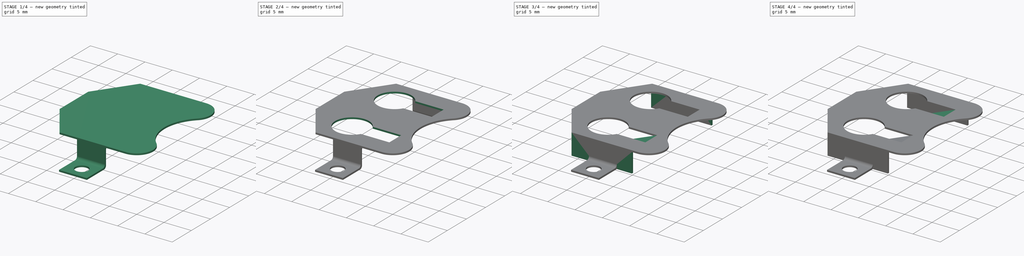
[diagram: build sequence overview — one tinted view per stage of 4, left to right]
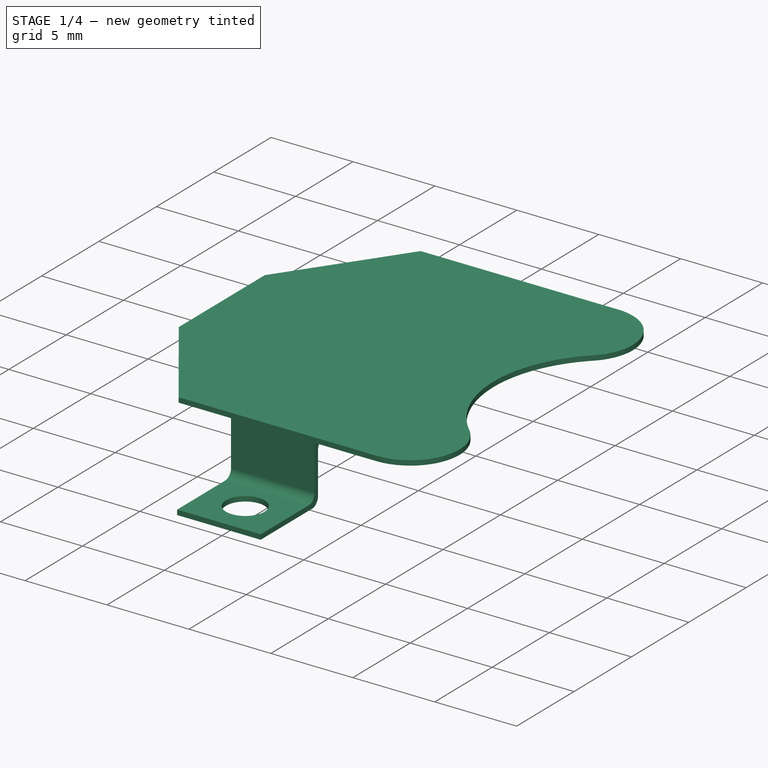
[diagram: stage 1 of 4 — iso view after this stage's code; geometry added in this stage tinted green]
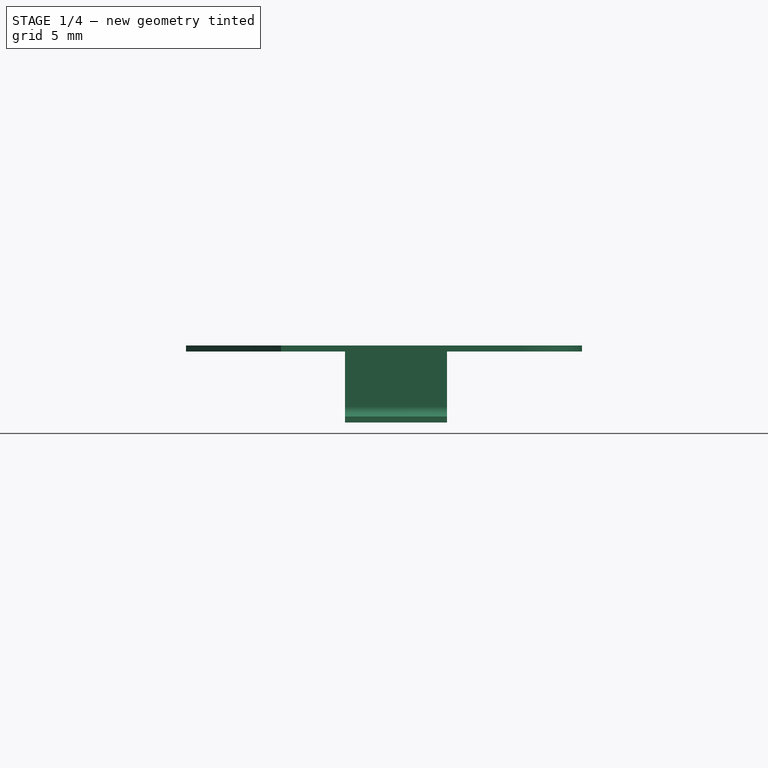
[diagram: stage 1 of 4 — front view after this stage's code; geometry added in this stage tinted green]
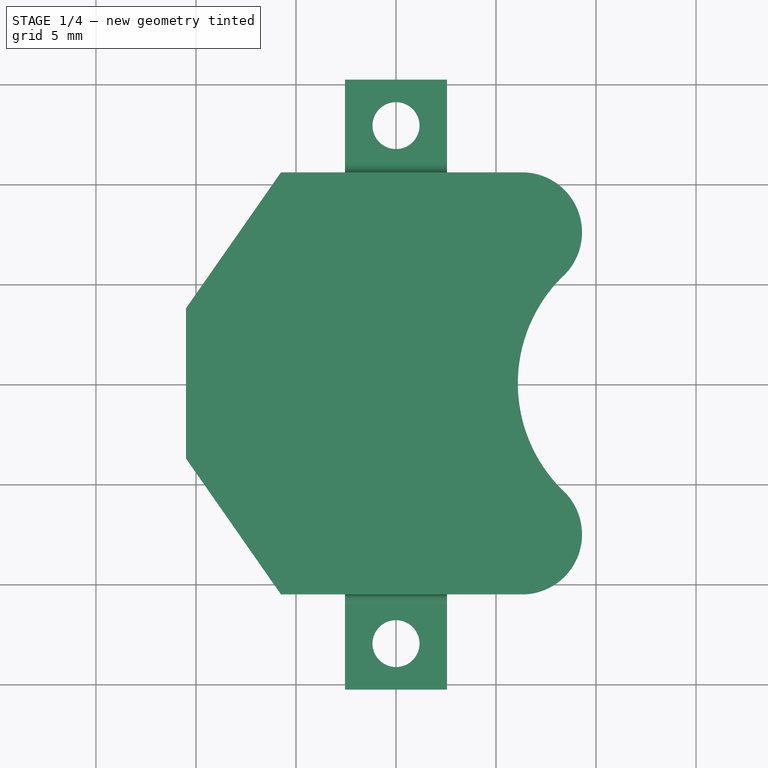
[diagram: stage 1 of 4 — top view after this stage's code; geometry added in this stage tinted green]
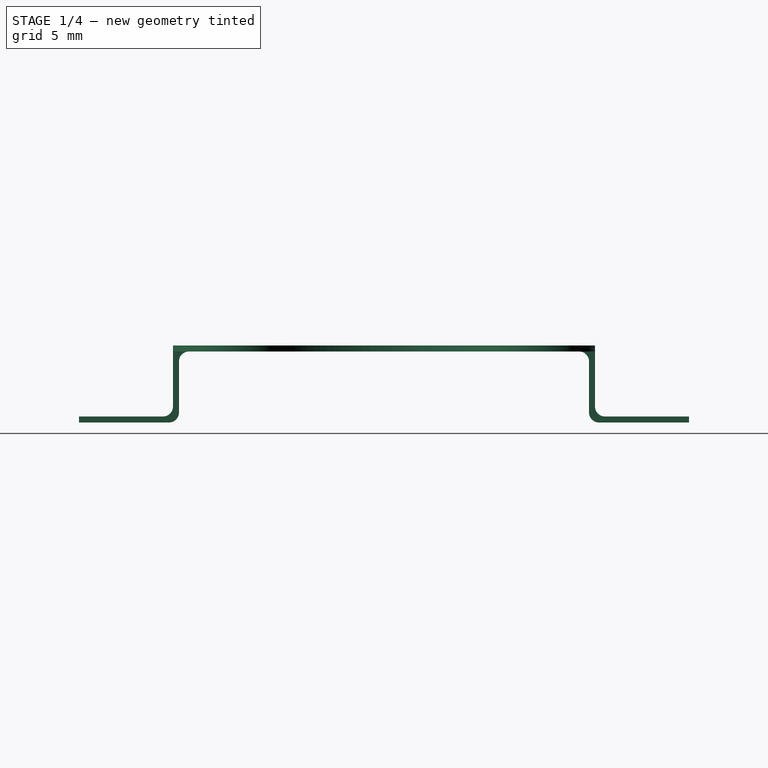
[diagram: stage 1 of 4 — right view after this stage's code; geometry added in this stage tinted green]
FCSTD DOCUMENT  (FreeCAD 1.1R44874 (Git))
Label: BatteryHolder_Eagle_12BH002-GR_1x2032
License: Creative Commons Attribution 4.0
LicenseURL: https://creativecommons.org/licenses/by/4.0/
objects: Sketcher::SketchObject×8, PartDesign::Pad×6, PartDesign::Pocket×2, PartDesign::Mirrored×2, App::Point×1, PartDesign::Fillet×1, PartDesign::Body×1
note: 48 computed .brp shape members not serialized (recipe doc carries the construction recipe); baked Part::Feature solids carry a one-line shape summary decoded from their .brp

FEATURE [App::Point] Origin001
  Role = Origin
FEATURE [Sketcher::SketchObject] Sketch001  label="LegSide"
  ArcFitTolerance = 1e-06
  AttachmentSupport = -> [Origin]
  ExternalTypes = [0]
  FullyConstrained = true
  MakeInternals = false
  MapMode = 5
  Placement = pos=(0,0,0) rot=(0.57735,0.57735,0.57735;2.0944rad)
  _ExternalGeoVersion = 1
  sketch-geometry (24):
    g0: LineSegment StartX=15.25 StartY=0 StartZ=0 EndX=10.75 EndY=0 EndZ=0
    g1: LineSegment StartX=10.25 StartY=0.5 StartZ=0 EndX=10.25 EndY=3.05 EndZ=0
    g2: LineSegment StartX=15.25 StartY=0 StartZ=0 EndX=15.25 EndY=0.3 EndZ=0
    g3: LineSegment StartX=15.25 StartY=0.3 StartZ=0 EndX=11.05 EndY=0.3 EndZ=0
    g4: LineSegment StartX=10.55 StartY=0.8 StartZ=0 EndX=10.55 EndY=3.85 EndZ=0
    g5: LineSegment StartX=10.55 StartY=3.85 StartZ=0 EndX=-10.55 EndY=3.85 EndZ=0
    g6: LineSegment StartX=9.75 StartY=3.55 StartZ=0 EndX=-9.75 EndY=3.55 EndZ=0
    g7: LineSegment StartX=-10.25 StartY=3.05 StartZ=0 EndX=-10.25 EndY=0.5 EndZ=0
    g8: LineSegment StartX=-10.75 StartY=0 StartZ=0 EndX=-15.25 EndY=0 EndZ=0
    g9: LineSegment StartX=-15.25 StartY=0 StartZ=0 EndX=-15.25 EndY=0.3 EndZ=0
    g10: LineSegment StartX=-15.25 StartY=0.3 StartZ=0 EndX=-11.05 EndY=0.3 EndZ=0
    g11: LineSegment StartX=-10.55 StartY=0.8 StartZ=0 EndX=-10.55 EndY=3.85 EndZ=0
    g12: ArcOfCircle CenterX=9.75 CenterY=3.05 CenterZ=0 NormalX=0 NormalY=0 NormalZ=1 AngleXU=0 Radius=0.5 StartAngle=0 EndAngle=1.5708
    g13: ArcOfCircle CenterX=-9.75 CenterY=3.05 CenterZ=0 NormalX=0 NormalY=0 NormalZ=1 AngleXU=0 Radius=0.5 StartAngle=1.5708 EndAngle=3.14159
    g14: ArcOfCircle CenterX=-10.75 CenterY=0.5 CenterZ=0 NormalX=0 NormalY=0 NormalZ=1 AngleXU=0 Radius=0.5 StartAngle=4.71239 EndAngle=6.28319
    g15: GeomPoint [constr] X=-10.25 Y=0 Z=0
    g16: ArcOfCircle CenterX=-11.05 CenterY=0.8 CenterZ=0 NormalX=0 NormalY=0 NormalZ=1 AngleXU=0 Radius=0.5 StartAngle=4.71239 EndAngle=6.28319
    g17: GeomPoint [constr] X=-10.55 Y=0.3 Z=0
    g18: ArcOfCircle CenterX=11.05 CenterY=0.8 CenterZ=0 NormalX=0 NormalY=0 NormalZ=1 AngleXU=0 Radius=0.5 StartAngle=3.14159 EndAngle=4.71239
    g19: GeomPoint [constr] X=10.55 Y=0.3 Z=0
    g20: ArcOfCircle CenterX=10.75 CenterY=0.5 CenterZ=0 NormalX=0 NormalY=0 NormalZ=1 AngleXU=0 Radius=0.5 StartAngle=3.14159 EndAngle=4.71239
    g21: GeomPoint [constr] X=10.25 Y=0 Z=0
    g22: LineSegment [constr] StartX=-9.75 StartY=3.85 StartZ=0 EndX=-9.75 EndY=3.55 EndZ=0
    g23: LineSegment [constr] StartX=-10.55 StartY=0.8 StartZ=0 EndX=-10.25 EndY=0.8 EndZ=0
  constraints (59):
    c: PointOnObject(g0,g-1)
    c: PointOnObject(g21,g-1)
    c: Vertical(g1)
    c: Coincident(g2,g0)
    c: Vertical(g2)
    c: Coincident(g3,g2)
    c: Horizontal(g3)
    c: Vertical(g4)
    c: PointOnObject(g15,g-1)
    c: Vertical(g7)
    c: PointOnObject(g8,g-1)
    c: Coincident(g10,g9)
    c: Horizontal(g10)
    c: Vertical(g11)
    c: Tangent(g6,g12) = -1.5708
    c: Tangent(g1,g12) = -1.5708
    c: Tangent(g6,g13) = -1.5708
    c: Tangent(g7,g13) = -1.5708
    c: PointOnObject(g15,g7)
    c: PointOnObject(g15,g8)
    c: Tangent(g7,g14) = 1.5708
    c: Tangent(g8,g14) = 1.5708
    c: PointOnObject(g17,g11)
    c: PointOnObject(g17,g10)
    c: Tangent(g11,g16) = -1.5708
    c: Tangent(g10,g16) = -1.5708
    c: Vertical(g9)
    c: Coincident(g8,g9)
    c: PointOnObject(g19,g4)
    c: PointOnObject(g19,g3)
    c: Tangent(g4,g18) = 1.5708
    c: Tangent(g3,g18) = 1.5708
    c: PointOnObject(g21,g1)
    c: PointOnObject(g21,g0)
    c: Tangent(g1,g20) = 1.5708
    c: Tangent(g0,g20) = 1.5708
    c: Equal(g12,g20)
    c: Equal(g20,g18)
    c: Equal(g13,g16)
    c: Equal(g16,g14)
    c: DistanceX(g11,g4) = 21.1
    c: DistanceX(g9,g2) = 30.5
    c: Symmetric(g2,g9,g-2)
    c: Distance(g9,g9) = 0.3
    c: Distance(g5,g-1) = 3.85
    c: PointOnObject(g22,g5)
    c: Vertical(g22)
    c: Equal(g22,g9)
    c: PointOnObject(g23,g7)
    c: Horizontal(g23)
    c: Equal(g23,g9)
    c: Radius(g12) = 0.5
    c: Coincident(g5,g4)
    c: Coincident(g11,g5)
    c: Symmetric(g4,g5,g-2)
    c: Equal(g13,g12)
    c: Symmetric(g12,g13,g-2)
    c: Coincident(g23,g11)
    c: Coincident(g22,g6)
FEATURE [PartDesign::Pad] Pad001  label="PadLegSide"
  Direction = (1,0,0)
  Length = 5.1
  Length2 = 10
  Profile = -> Sketch001
  ReferenceAxis = -> Sketch001 [N_Axis]
  Refine = true
  SideType = 2
  Suppressed = false
  Type = 0
  Type2 = 0
FEATURE [Sketcher::SketchObject] Sketch  label="LegHoles"
  ArcFitTolerance = 1e-06
  AttachmentSupport = -> [Pad001]
  ExternalTypes = [0]
  FullyConstrained = true
  MakeInternals = false
  MapMode = 5
  Placement = pos=(0,0,0.3) rot=(0,0,1;0rad)
  _ExternalGeoVersion = 1
  sketch-geometry (2):
    g0: Circle CenterX=0 CenterY=12.95 CenterZ=0 NormalX=0 NormalY=0 NormalZ=1 AngleXU=0 Radius=1.175
    g1: Circle CenterX=0 CenterY=-12.95 CenterZ=0 NormalX=0 NormalY=0 NormalZ=1 AngleXU=0 Radius=1.175
  constraints (5):
    c: PointOnObject(g0,g-2)
    c: Diameter(g0) = 2.35
    c: Equal(g0,g1)
    c: Symmetric(g0,g1,g-1)
    c: DistanceY(g1,g0) = 25.9
FEATURE [PartDesign::Pocket] Pocket  label="PocketLegHoles"
  BaseFeature = -> Pad001
  Direction = (0,0,-1)
  Length = 5
  Length2 = 5
  Profile = -> Sketch
  ReferenceAxis = -> Sketch [N_Axis]
  Refine = true
  SideType = 0
  Suppressed = false
  Type = 1
  Type2 = 0
FEATURE [Sketcher::SketchObject] Sketch002  label="TopShell"
  ArcFitTolerance = 1e-06
  AttachmentOffset = pos=(0,0,3.85) rot=(0,0,1;0rad)
  AttachmentSupport = -> [XY_Plane]
  ExternalTypes = [0]
  FullyConstrained = true
  MakeInternals = false
  MapMode = 5
  Placement = pos=(0,0,3.85) rot=(0,0,1;0rad)
  _ExternalGeoVersion = 1
  sketch-geometry (9):
    g0: LineSegment StartX=-5.75 StartY=10.55 StartZ=0 EndX=-10.5 EndY=3.75 EndZ=0
    g1: LineSegment StartX=-5.75 StartY=-10.55 StartZ=0 EndX=-10.5 EndY=-3.75 EndZ=0
    g2: LineSegment StartX=-10.5 StartY=3.75 StartZ=0 EndX=-10.5 EndY=-3.75 EndZ=0
    g3: ArcOfCircle CenterX=6.3 CenterY=7.55 CenterZ=0 NormalX=0 NormalY=0 NormalZ=1 AngleXU=0 Radius=3 StartAngle=5.43183 EndAngle=7.85398
    g4: ArcOfCircle CenterX=6.3 CenterY=-7.55 CenterZ=0 NormalX=0 NormalY=0 NormalZ=1 AngleXU=0 Radius=3 StartAngle=4.71239 EndAngle=7.13454
    g5: ArcOfCircle CenterX=13.59 CenterY=4e-16 CenterZ=0 NormalX=0 NormalY=0 NormalZ=1 AngleXU=0 Radius=7.5 StartAngle=2.35804 EndAngle=3.92514
    g6: LineSegment [constr] StartX=9.3 StartY=7.55 StartZ=0 EndX=9.3 EndY=-7.55 EndZ=0
    g7: LineSegment StartX=-5.75 StartY=10.55 StartZ=0 EndX=6.3 EndY=10.55 EndZ=0
    g8: LineSegment StartX=-5.75 StartY=-10.55 StartZ=0 EndX=6.3 EndY=-10.55 EndZ=0
  constraints (26):
    c: Distance(g0,g-2) = 10.5
    c: Symmetric(g0,g1,g-1)
    c: Symmetric(g0,g1,g-1)
    c: Coincident(g2,g0)
    c: Coincident(g2,g1)
    c: DistanceY(g1,g0) = 7.5
    c: Equal(g4,g3)
    c: Radius(g3) = 3
    c: Radius(g5) = 7.5
    c: Coincident(g3,g5)
    c: Coincident(g5,g4)
    c: Symmetric(g4,g3,g-1)
    c: Tangent(g6,g3) = 1.5708
    c: PointOnObject(g6,g4)
    c: Vertical(g6)
    c: Distance(g1,g6) = 19.8
    c: Distance(g5,g-2) = 6.09
    c: DistanceY(g1,g0) = 21.1
    c: Distance(g0,g-2) = 5.75
    c: Coincident(g7,g0)
    c: Tangent(g7,g3) = 1.5708
    c: Horizontal(g7)
    c: Coincident(g8,g1)
    c: Coincident(g8,g4)
    c: Horizontal(g8)
    c: Equal(g7,g8)
FEATURE [PartDesign::Pad] Pad  label="PadTopShell"
  BaseFeature = -> Pocket
  Direction = (0,0,1)
  Length = 0.3
  Length2 = 10
  Profile = -> Sketch002
  ReferenceAxis = -> Sketch002 [N_Axis]
  Refine = true
  Reversed = true
  SideType = 0
  Suppressed = false
  Type = 0
  Type2 = 0
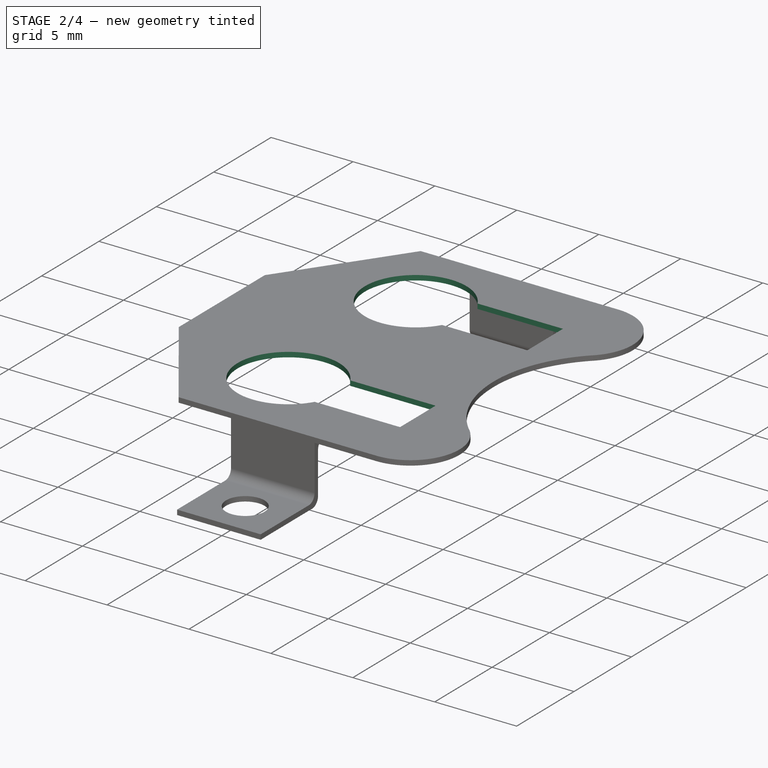
[diagram: stage 2 of 4 — iso view after this stage's code; geometry added in this stage tinted green]
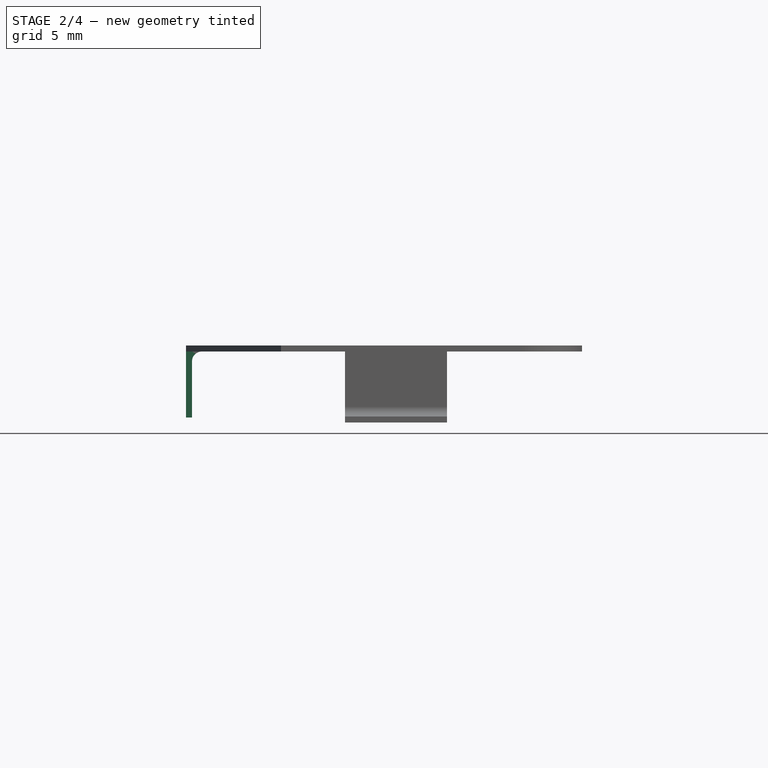
[diagram: stage 2 of 4 — front view after this stage's code; geometry added in this stage tinted green]
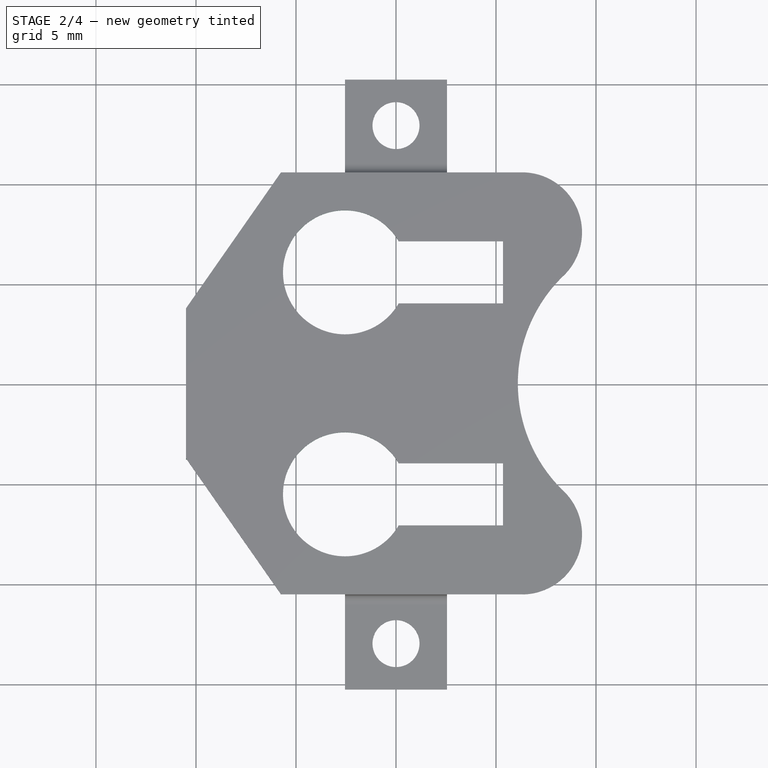
[diagram: stage 2 of 4 — top view after this stage's code; geometry added in this stage tinted green]
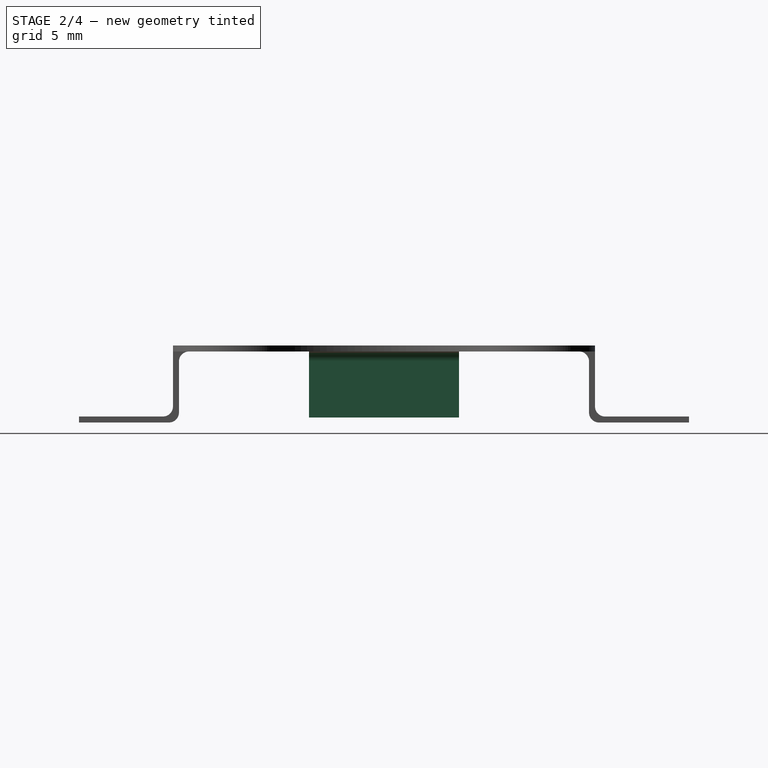
[diagram: stage 2 of 4 — right view after this stage's code; geometry added in this stage tinted green]
FEATURE [Sketcher::SketchObject] Sketch003  label="ShellHoles"
  ArcFitTolerance = 1e-06
  AttachmentSupport = -> [Pad]
  ExternalTypes = [0]
  FullyConstrained = true
  MakeInternals = false
  MapMode = 5
  Placement = pos=(0,0,3.85) rot=(0,0,1;0rad)
  _ExternalGeoVersion = 1
  sketch-geometry (10):
    g0: ArcOfCircle CenterX=-2.55 CenterY=5.55 CenterZ=0 NormalX=0 NormalY=0 NormalZ=1 AngleXU=0 Radius=3.1 StartAngle=0.523599 EndAngle=5.75959
    g1: LineSegment StartX=0.134679 StartY=7.1 StartZ=0 EndX=5.35 EndY=7.1 EndZ=0
    g2: LineSegment StartX=5.35 StartY=7.1 StartZ=0 EndX=5.35 EndY=4 EndZ=0
    g3: LineSegment StartX=5.35 StartY=4 StartZ=0 EndX=0.134679 EndY=4 EndZ=0
    g4: LineSegment [constr] StartX=-2.55 StartY=5.55 StartZ=0 EndX=5.35 EndY=5.55 EndZ=0
    g5: ArcOfCircle CenterX=-2.55 CenterY=-5.55 CenterZ=0 NormalX=0 NormalY=0 NormalZ=1 AngleXU=0 Radius=3.1 StartAngle=0.523599 EndAngle=5.75959
    g6: LineSegment StartX=0.134679 StartY=-7.1 StartZ=0 EndX=5.35 EndY=-7.1 EndZ=0
    g7: LineSegment StartX=5.35 StartY=-7.1 StartZ=0 EndX=5.35 EndY=-4 EndZ=0
    g8: LineSegment StartX=5.35 StartY=-4 StartZ=0 EndX=0.134679 EndY=-4 EndZ=0
    g9: LineSegment [constr] StartX=-2.55 StartY=-5.55 StartZ=0 EndX=5.35 EndY=-5.55 EndZ=0
  constraints (27):
    c: Distance(g0,g-2) = 2.55
    c: Horizontal(g1)
    c: Coincident(g2,g1)
    c: Vertical(g2)
    c: Coincident(g3,g2)
    c: Horizontal(g3)
    c: Radius(g0) = 3.1
    c: Coincident(g1,g0)
    c: Coincident(g3,g0)
    c: Coincident(g4,g0)
    c: PointOnObject(g4,g2)
    c: Horizontal(g4)
    c: Symmetric(g0,g0,g4)
    c: Equal(g0,g5)
    c: Symmetric(g0,g5,g-1)
    c: Symmetric(g0,g5,g-1)
    c: Symmetric(g1,g6,g-1)
    c: Symmetric(g1,g6,g-1)
    c: Symmetric(g2,g7,g-1)
    c: Symmetric(g2,g7,g-1)
    c: Symmetric(g3,g8,g-1)
    c: Symmetric(g3,g8,g-1)
    c: Symmetric(g4,g9,g-1)
    c: Symmetric(g4,g9,g-1)
    c: DistanceY(g5,g0) = 11.1
    c: DistanceY(g7,g2) = 8
    c: DistanceX(g0,g1) = 7.9
FEATURE [PartDesign::Pocket] Pocket001  label="PocketShellHoles"
  BaseFeature = -> Pad
  Direction = (0,0,-1)
  Length = 5
  Length2 = 5
  Profile = -> Sketch003
  ReferenceAxis = -> Sketch003 [N_Axis]
  Refine = true
  SideType = 0
  Suppressed = false
  Type = 1
  Type2 = 0
FEATURE [Sketcher::SketchObject] Sketch004  label="FrontWall"
  ArcFitTolerance = 1e-06
  AttachmentSupport = -> [Pocket001]
  ExternalGeometry = -> [Sketch002]
  ExternalTypes = [0,0]
  FullyConstrained = true
  MakeInternals = false
  MapMode = 5
  Placement = pos=(0,0,3.55) rot=(1,0,0;3.14159rad)
  _ExternalGeoVersion = 1
  sketch-geometry (3):
    g0: LineSegment StartX=-10.5 StartY=3.75 StartZ=0 EndX=-10.2 EndY=3.75 EndZ=0
    g1: LineSegment StartX=-10.2 StartY=3.75 StartZ=0 EndX=-10.2 EndY=-3.75 EndZ=0
    g2: LineSegment StartX=-10.2 StartY=-3.75 StartZ=0 EndX=-10.5 EndY=-3.75 EndZ=0
  constraints (8):
    c: Horizontal(g0)
    c: Coincident(g1,g0)
    c: Vertical(g1)
    c: Coincident(g2,g1)
    c: Horizontal(g2)
    c: DistanceX(g0,g0) = 0.3
    c: Coincident(g0,g-3)
    c: Coincident(g2,g-3)
FEATURE [PartDesign::Pad] Pad002  label="PadFrontWall"
  BaseFeature = -> Pocket001
  Direction = (0,0,-1)
  Length = 3.3
  Length2 = 10
  Profile = -> Sketch004
  ReferenceAxis = -> Sketch004 [N_Axis]
  Refine = true
  SideType = 0
  Suppressed = false
  Type = 0
  Type2 = 0
FEATURE [PartDesign::Fillet] Fillet  label="FilletStopperInner"
  Base = -> Pad002 [Edge32]
  BaseFeature = -> Pad002
  Radius = 0.5
  Refine = true
  SupportTransform = false
  Suppressed = false
  UseAllEdges = false
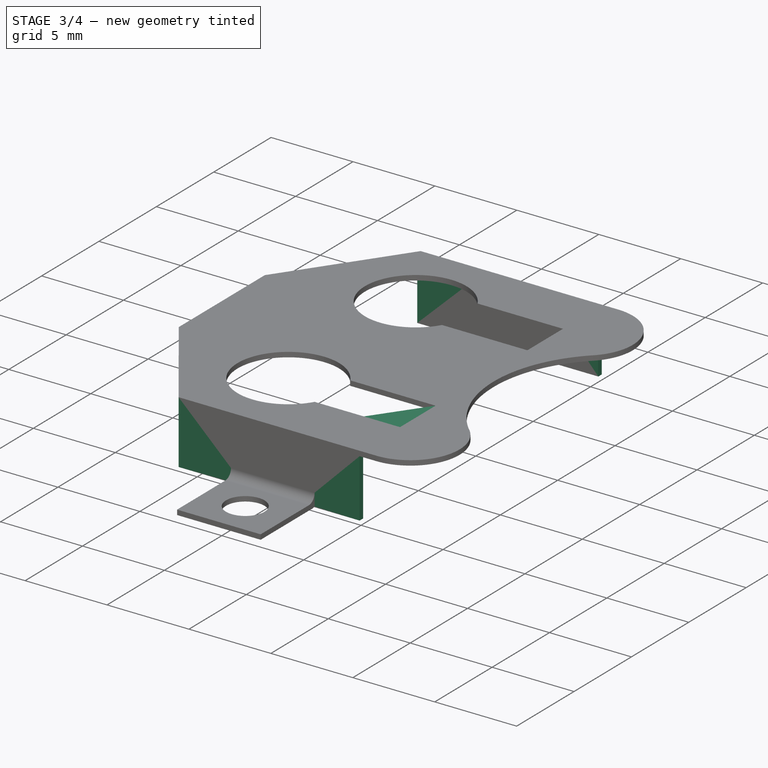
[diagram: stage 3 of 4 — iso view after this stage's code; geometry added in this stage tinted green]
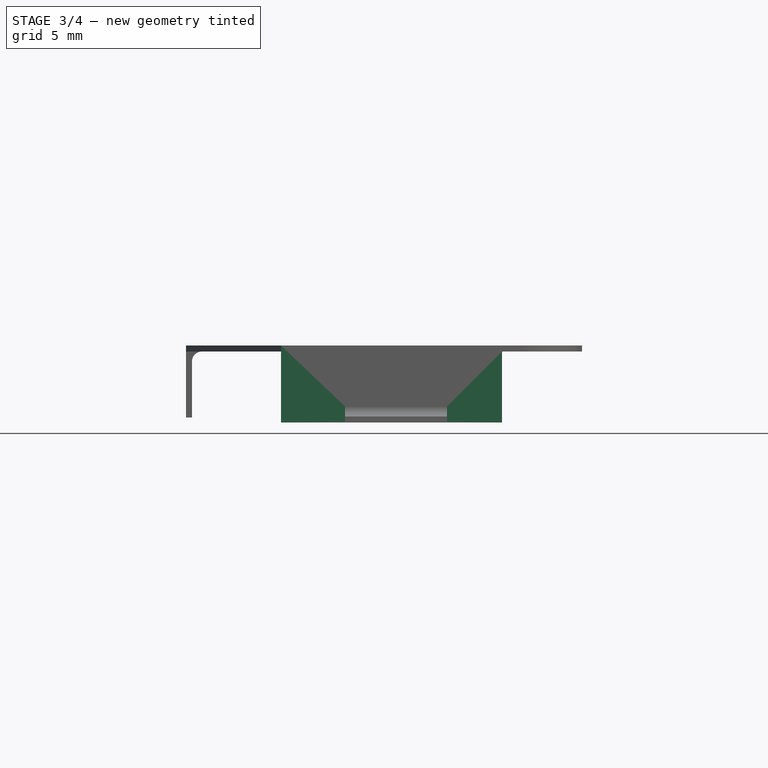
[diagram: stage 3 of 4 — front view after this stage's code; geometry added in this stage tinted green]
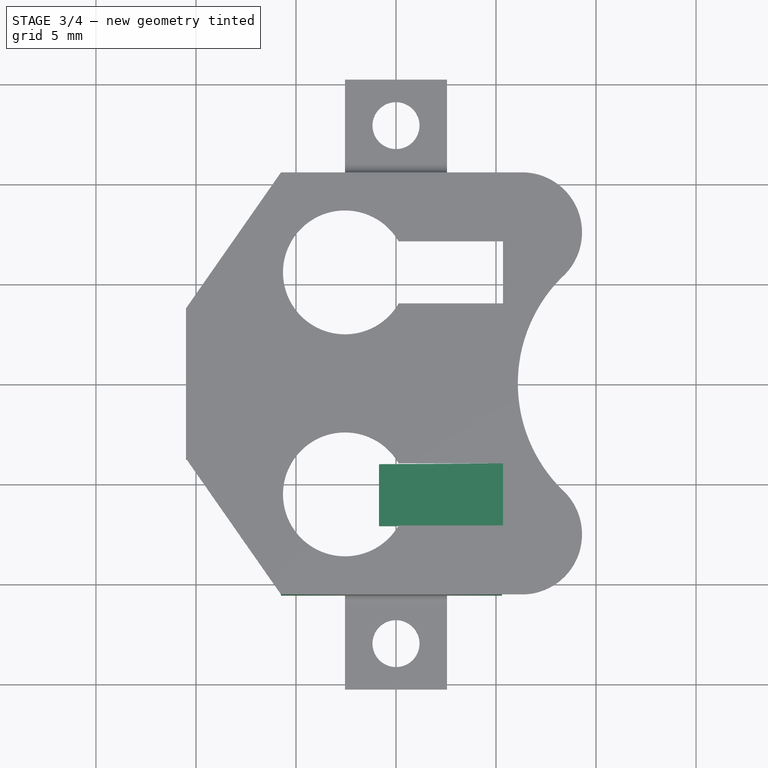
[diagram: stage 3 of 4 — top view after this stage's code; geometry added in this stage tinted green]
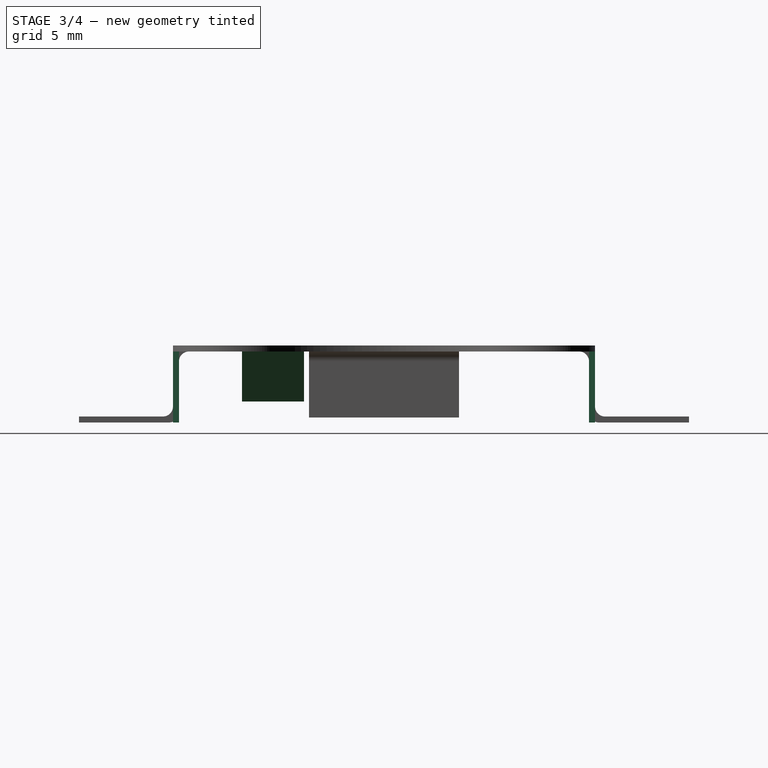
[diagram: stage 3 of 4 — right view after this stage's code; geometry added in this stage tinted green]
FEATURE [Sketcher::SketchObject] Sketch005  label="SideWalls"
  ArcFitTolerance = 1e-06
  AttachmentSupport = -> [Pocket001]
  ExternalGeometry = -> [Pocket001]
  ExternalTypes = [0,0]
  FullyConstrained = true
  MakeInternals = false
  MapMode = 5
  Placement = pos=(0,0,3.55) rot=(1,0,0;3.14159rad)
  _ExternalGeoVersion = 1
  sketch-geometry (8):
    g0: LineSegment StartX=-5.75 StartY=10.55 StartZ=0 EndX=5.3 EndY=10.55 EndZ=0
    g1: LineSegment StartX=5.3 StartY=10.55 StartZ=0 EndX=5.3 EndY=10.25 EndZ=0
    g2: LineSegment StartX=5.3 StartY=10.25 StartZ=0 EndX=-5.75 EndY=10.25 EndZ=0
    g3: LineSegment StartX=-5.75 StartY=10.55 StartZ=0 EndX=-5.75 EndY=10.25 EndZ=0
    g4: LineSegment StartX=-5.75 StartY=-10.55 StartZ=0 EndX=5.3 EndY=-10.55 EndZ=0
    g5: LineSegment StartX=5.3 StartY=-10.55 StartZ=0 EndX=5.3 EndY=-10.25 EndZ=0
    g6: LineSegment StartX=5.3 StartY=-10.25 StartZ=0 EndX=-5.75 EndY=-10.25 EndZ=0
    g7: LineSegment StartX=-5.75 StartY=-10.55 StartZ=0 EndX=-5.75 EndY=-10.25 EndZ=0
  constraints (19):
    c: Coincident(g0,g-3)
    c: Horizontal(g0)
    c: Coincident(g1,g0)
    c: Vertical(g1)
    c: Horizontal(g2)
    c: Coincident(g3,g0)
    c: Coincident(g3,g2)
    c: Vertical(g3)
    c: DistanceY(g1,g1) = 0.3
    c: Coincident(g1,g2)
    c: DistanceX(g-4,g0) = 15.8
    c: Symmetric(g0,g4,g-1)
    c: Symmetric(g0,g4,g-1)
    c: Symmetric(g1,g5,g-1)
    c: Symmetric(g1,g5,g-1)
    c: Symmetric(g2,g6,g-1)
    c: Symmetric(g2,g6,g-1)
    c: Symmetric(g3,g7,g-1)
    c: Symmetric(g3,g7,g-1)
FEATURE [PartDesign::Pad] Pad003  label="PadSideWalls"
  BaseFeature = -> Fillet
  Direction = (0,0,-1)
  Length = 3.55
  Length2 = 10
  Profile = -> Sketch005
  ReferenceAxis = -> Sketch005 [N_Axis]
  Refine = true
  SideType = 0
  Suppressed = false
  Type = 0
  Type2 = 0
FEATURE [Sketcher::SketchObject] Sketch006  label="SpringStem"
  ArcFitTolerance = 1e-06
  AttachmentOffset = pos=(0,0,4) rot=(0,0,1;0rad)
  AttachmentSupport = -> [Origin]
  ExternalGeometry = -> [Sketch003]
  ExternalTypes = [0]
  FullyConstrained = true
  MakeInternals = false
  MapMode = 5
  Placement = pos=(0,-4,9e-16) rot=(1,0,0;1.5708rad)
  _ExternalGeoVersion = 1
  sketch-geometry (4):
    g0: LineSegment StartX=-0.85 StartY=1.35 StartZ=0 EndX=5.35 EndY=3.85 EndZ=0
    g1: LineSegment StartX=-0.85 StartY=1.35 StartZ=0 EndX=-0.85 EndY=1.05 EndZ=0
    g2: LineSegment StartX=-0.85 StartY=1.05 StartZ=0 EndX=5.35 EndY=3.55 EndZ=0
    g3: LineSegment StartX=5.35 StartY=3.85 StartZ=0 EndX=5.35 EndY=3.55 EndZ=0
  constraints (11):
    c: Coincident(g0,g-3)
    c: DistanceX(g0,g0) = 6.2
    c: Coincident(g1,g0)
    c: Vertical(g1)
    c: Coincident(g2,g1)
    c: Coincident(g3,g0)
    c: Coincident(g3,g2)
    c: Vertical(g3)
    c: DistanceY(g2,g0) = 0.3
    c: Equal(g0,g2)
    c: DistanceY(g1,g0) = 2.8
FEATURE [PartDesign::Pad] Pad004  label="PadSpringStem"
  BaseFeature = -> Pad003
  Direction = (0,-1,2e-16)
  Length = 3.1
  Length2 = 10
  Profile = -> Sketch006
  ReferenceAxis = -> Sketch006 [N_Axis]
  Refine = true
  SideType = 0
  Suppressed = false
  Type = 0
  Type2 = 0
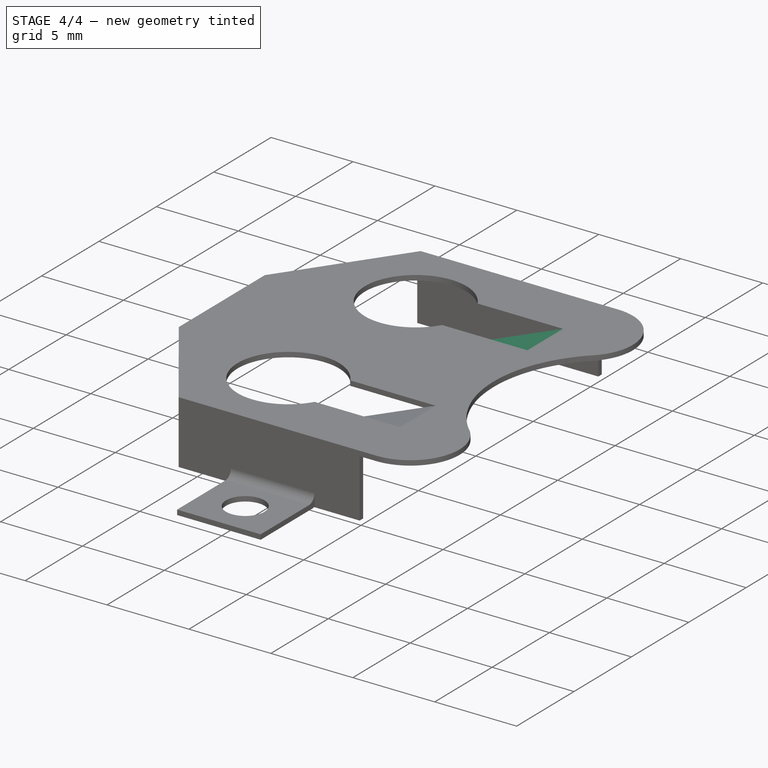
[diagram: stage 4 of 4 — iso view after this stage's code; geometry added in this stage tinted green]
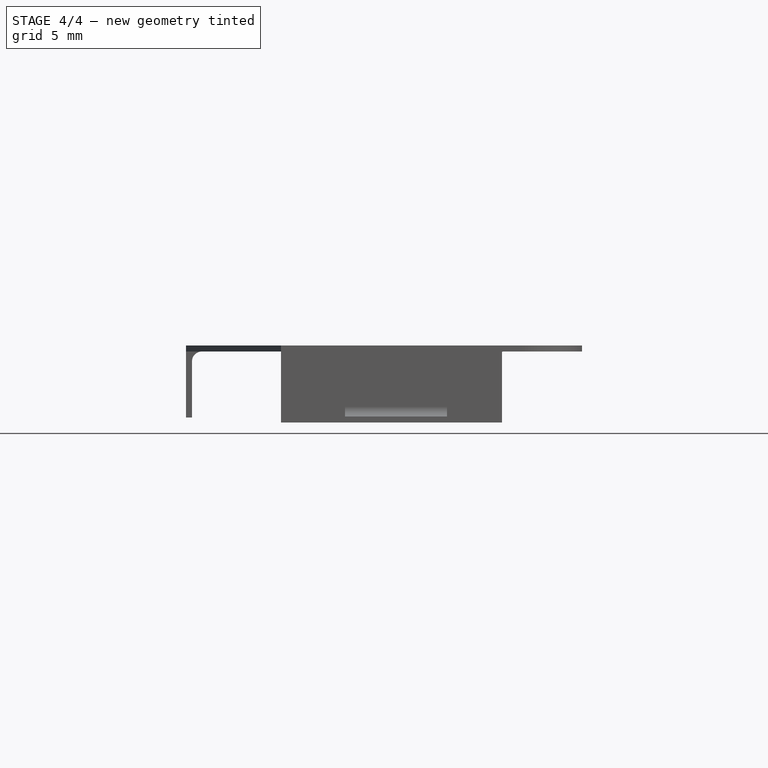
[diagram: stage 4 of 4 — front view after this stage's code; geometry added in this stage tinted green]
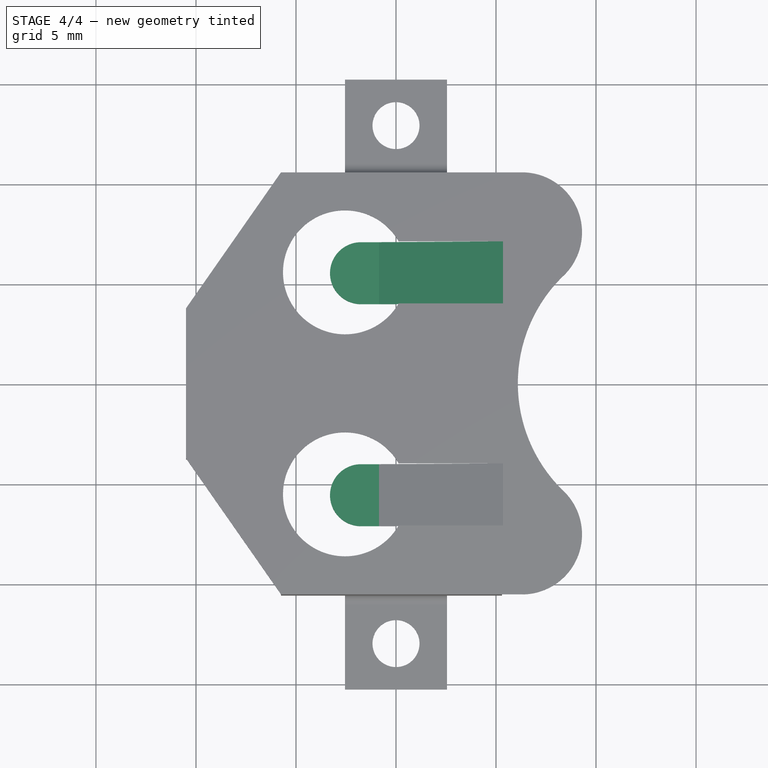
[diagram: stage 4 of 4 — top view after this stage's code; geometry added in this stage tinted green]
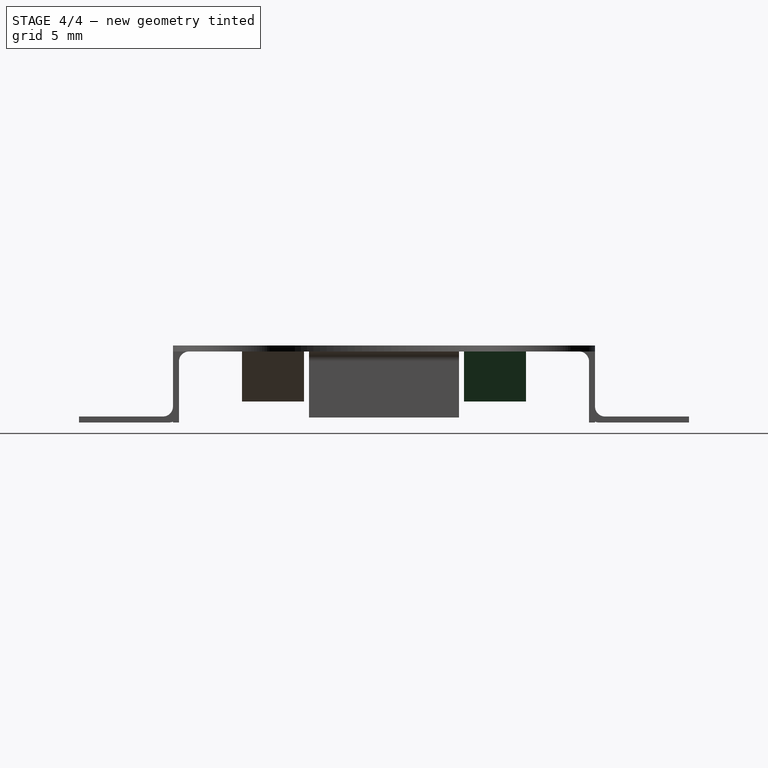
[diagram: stage 4 of 4 — right view after this stage's code; geometry added in this stage tinted green]
FEATURE [PartDesign::Mirrored] Mirrored  label="MirrorSpringStem"
  BaseFeature = -> Pad004
  MirrorPlane = -> XZ_Plane
  Originals = -> [Pad004]
  Refine = true
  Suppressed = false
  TransformMode = 0
FEATURE [Sketcher::SketchObject] Sketch007  label="SpringBase"
  ArcFitTolerance = 1e-06
  AttachmentOffset = pos=(0,0,1.05) rot=(0,0,1;0rad)
  AttachmentSupport = -> [Origin]
  ExternalGeometry = -> [Sketch003,Mirrored]
  ExternalTypes = [0,0]
  FullyConstrained = true
  MakeInternals = false
  MapMode = 5
  Placement = pos=(0,0,1.05) rot=(0,0,1;0rad)
  _ExternalGeoVersion = 1
  sketch-geometry (3):
    g0: LineSegment StartX=-0.85 StartY=4 StartZ=0 EndX=-1.75 EndY=4 EndZ=0
    g1: LineSegment StartX=-0.85 StartY=7.1 StartZ=0 EndX=-1.75 EndY=7.1 EndZ=0
    g2: ArcOfCircle CenterX=-1.75 CenterY=5.55 CenterZ=0 NormalX=0 NormalY=0 NormalZ=1 AngleXU=0 Radius=1.55 StartAngle=1.5708 EndAngle=4.71239
  constraints (9):
    c: Coincident(g0,g-4)
    c: Horizontal(g0)
    c: Coincident(g1,g-4)
    c: Horizontal(g1)
    c: Coincident(g2,g1)
    c: Coincident(g2,g0)
    c: Vertical(g2,g1)
    c: Vertical(g1,g0)
    c: DistanceX(g0,g-3) = 7.1
FEATURE [PartDesign::Pad] Pad005  label="PadSpringBase"
  BaseFeature = -> Mirrored
  Direction = (0,0,1)
  Length = 0.3
  Length2 = 10
  Profile = -> Sketch007
  ReferenceAxis = -> Sketch007 [N_Axis]
  Refine = true
  SideType = 0
  Suppressed = false
  Type = 0
  Type2 = 0
FEATURE [PartDesign::Mirrored] Mirrored001  label="MirrorSpringBase"
  BaseFeature = -> Pad005
  MirrorPlane = -> Sketch007 [H_Axis]
  Originals = -> [Pad005]
  Refine = true
  Suppressed = false
  TransformMode = 0
FEATURE [PartDesign::Body] Body
  AllowCompound = true
  Group = -> [Sketch001,Pad001,Sketch,Pocket,Sketch002,Pad,Sketch003,Pocket001,Sketch004,Pad002,Fillet,Sketch005,Pad003,Sketch006,Pad004,Mirrored,Sketch007,Pad005,Mirrored001]
  Origin = -> Origin
  Tip = -> Mirrored001
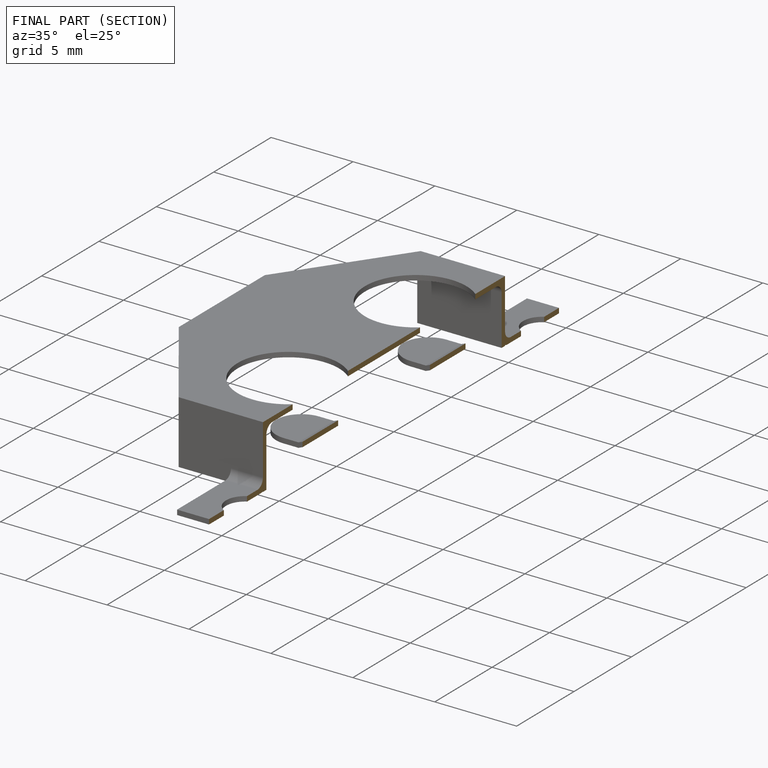
[diagram: finished part — half-section view (interior)]
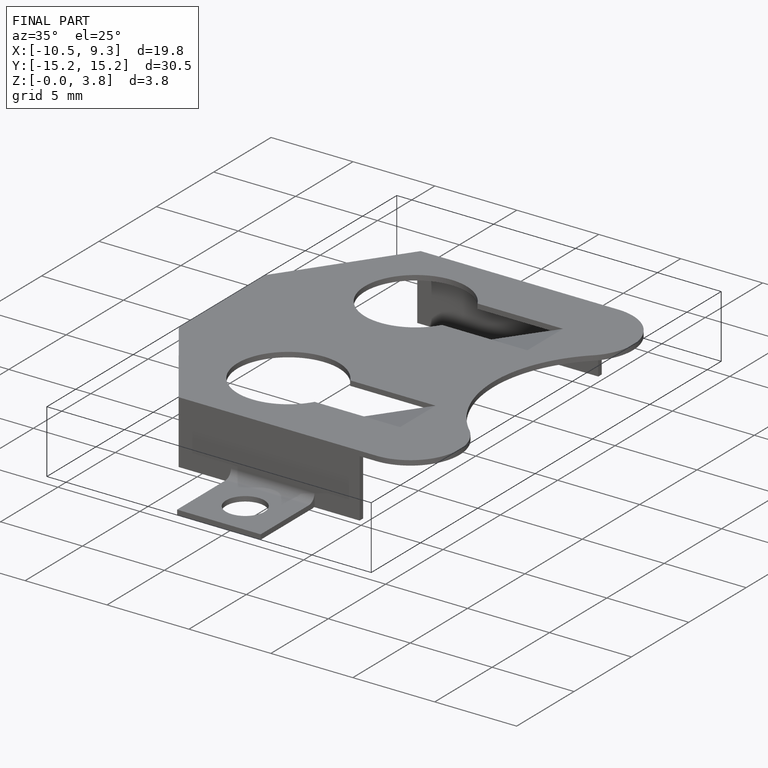
[diagram: finished part — iso view with bounding-box wireframe]
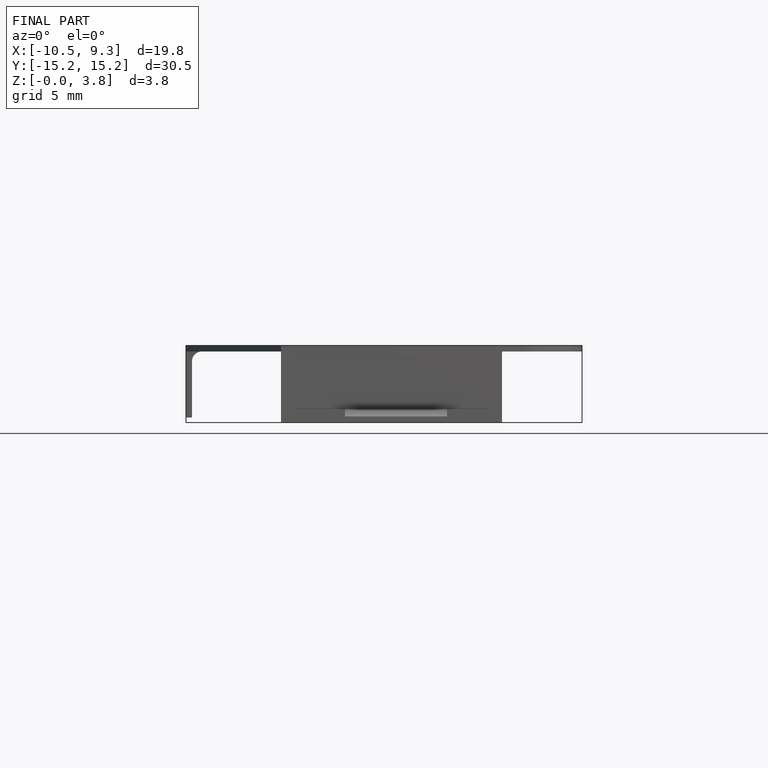
[diagram: finished part — front view with bounding-box wireframe]
